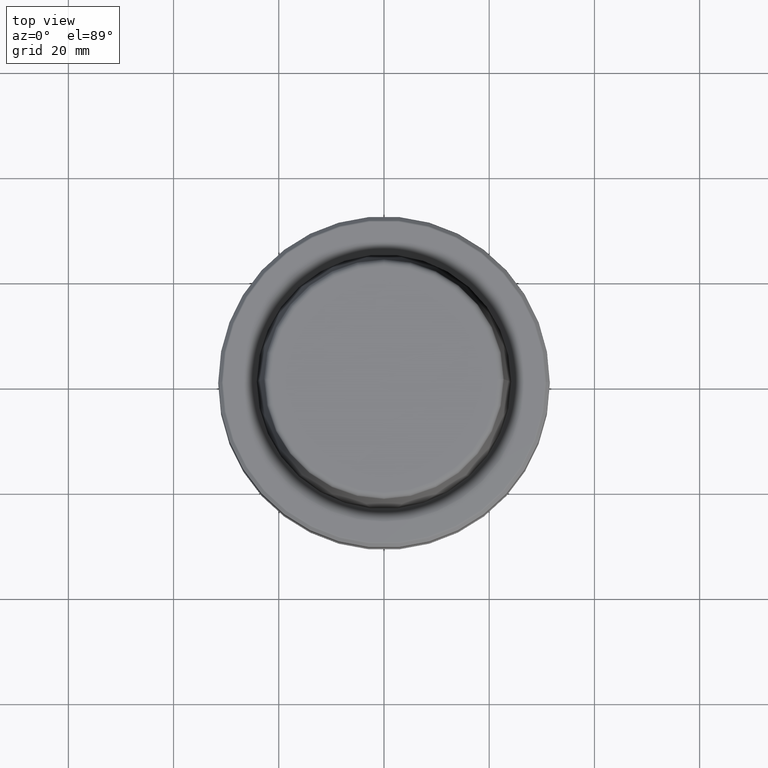
[diagram: clean part render]
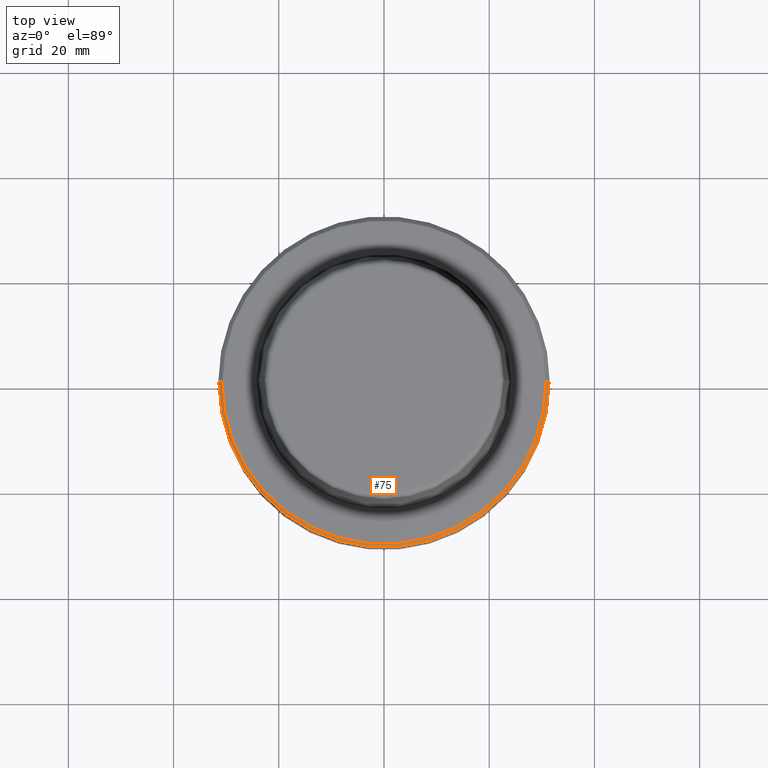
[diagram: same view with one face highlighted and labeled with its STEP entity id]
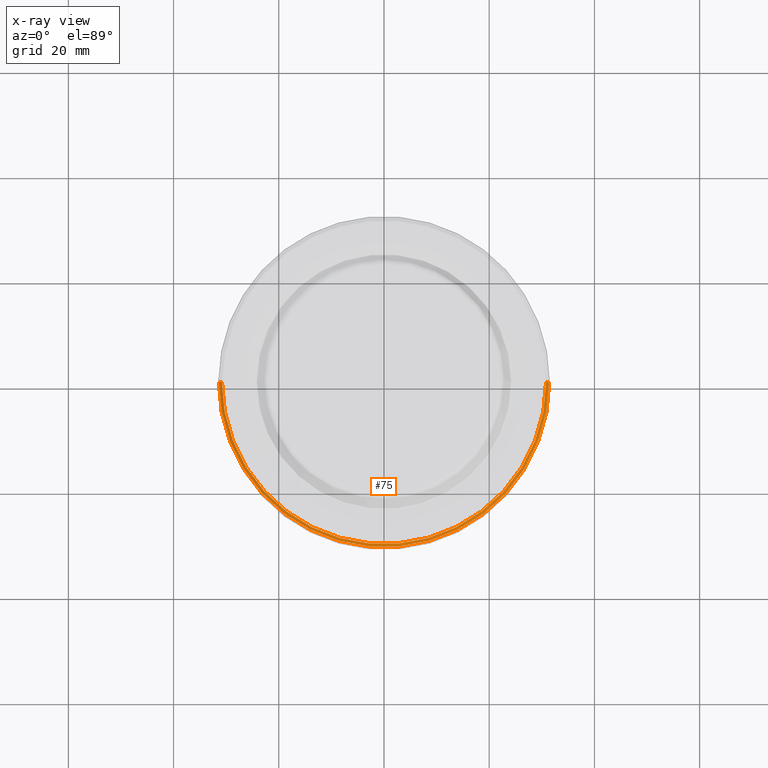
[diagram: x-ray of the same camera — body ghosted, the highlighted face saturated]
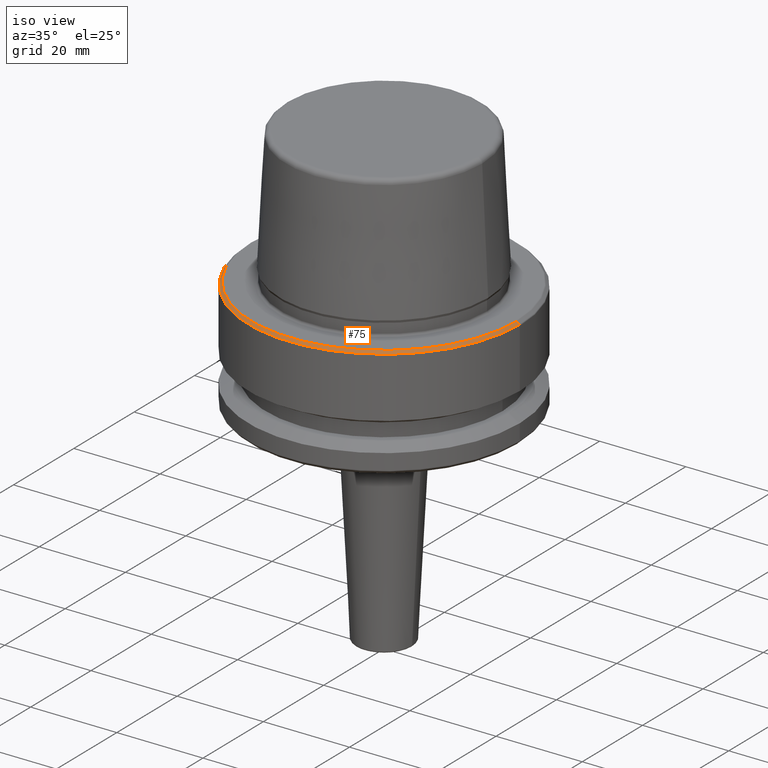
[diagram: same view with one face highlighted and labeled with its STEP entity id]
A machine part, top view. The second image highlights one B-rep face of the part: STEP entity #75.
The next image is the same camera in x-ray: the body ghosted, the highlighted face saturated — about 0% of this face is hidden behind the body in this view.
A second angle (iso view) of the same face is appended — the face is thin or edge-on in the first view.
In plain terms, the highlighted conical surface has half-angle 45 deg.
Its self-contained STEP definition (entity closure, byte-faithful):
#4 = VERTEX_POINT ( 'NONE', #375 ) ;
#41 = ORIENTED_EDGE ( 'NONE', *, *, #95, .T. ) ;
#49 = EDGE_LOOP ( 'NONE', ( #1072, #937, #41, #766 ) ) ;
#53 = AXIS2_PLACEMENT_3D ( 'NONE', #204, #878, #301 ) ;
#75 = ADVANCED_FACE ( 'NONE', ( #308 ), #1247, .T. ) ;
#95 = EDGE_CURVE ( 'NONE', #945, #709, #689, .T. ) ;
#100 = DIRECTION ( 'NONE',  ( -1.000000000000000000, 0.0000000000000000000, 0.0000000000000000000 ) ) ;
#164 = DIRECTION ( 'NONE',  ( -0.0000000000000000000, -0.0000000000000000000, 1.000000000000000000 ) ) ;
#168 = CARTESIAN_POINT ( 'NONE',  ( -30.81715728752537900, 0.0000000000000000000, -0.1171572875253851200 ) ) ;
#204 = CARTESIAN_POINT ( 'NONE',  ( 0.0000000000000000000, 0.0000000000000000000, -0.6828427124746239100 ) ) ;
#214 = EDGE_CURVE ( 'NONE', #4, #1148, #498, .T. ) ;
#269 = EDGE_CURVE ( 'NONE', #945, #4, #693, .T. ) ;
#301 = DIRECTION ( 'NONE',  ( 1.000000000000000000, 0.0000000000000000000, 0.0000000000000000000 ) ) ;
#308 = FACE_OUTER_BOUND ( 'NONE', #49, .T. ) ;
#375 = CARTESIAN_POINT ( 'NONE',  ( 30.81715728752537900, 3.808651545348268500E-015, -0.1171572875253851200 ) ) ;
#415 = CIRCLE ( 'NONE', #53, 31.38284271247461600 ) ;
#419 = CARTESIAN_POINT ( 'NONE',  ( 31.38284271247461600, 0.0000000000000000000, -0.6828427124746239100 ) ) ;
#435 = CARTESIAN_POINT ( 'NONE',  ( 31.38284271247461600, 3.843289787597687600E-015, -0.6828427124746239100 ) ) ;
#498 = LINE ( 'NONE', #435, #732 ) ;
#627 = CARTESIAN_POINT ( 'NONE',  ( 0.0000000000000000000, 0.0000000000000000000, -0.6828427124746239100 ) ) ;
#651 = AXIS2_PLACEMENT_3D ( 'NONE', #627, #1114, #100 ) ;
#689 = LINE ( 'NONE', #1229, #1220 ) ;
#693 = CIRCLE ( 'NONE', #991, 30.81715728752537900 ) ;
#709 = VERTEX_POINT ( 'NONE', #1099 ) ;
#732 = VECTOR ( 'NONE', #1019, 1000.000000000000000 ) ;
#737 = CARTESIAN_POINT ( 'NONE',  ( 0.0000000000000000000, 0.0000000000000000000, -0.1171572875253851200 ) ) ;
#766 = ORIENTED_EDGE ( 'NONE', *, *, #905, .T. ) ;
#837 = DIRECTION ( 'NONE',  ( 1.000000000000000000, 0.0000000000000000000, 0.0000000000000000000 ) ) ;
#878 = DIRECTION ( 'NONE',  ( -0.0000000000000000000, -0.0000000000000000000, 1.000000000000000000 ) ) ;
#905 = EDGE_CURVE ( 'NONE', #709, #1148, #415, .T. ) ;
#937 = ORIENTED_EDGE ( 'NONE', *, *, #269, .F. ) ;
#945 = VERTEX_POINT ( 'NONE', #168 ) ;
#991 = AXIS2_PLACEMENT_3D ( 'NONE', #737, #164, #837 ) ;
#1019 = DIRECTION ( 'NONE',  ( 0.7071067811865453500, 8.659560562354907000E-017, -0.7071067811865496800 ) ) ;
#1072 = ORIENTED_EDGE ( 'NONE', *, *, #214, .F. ) ;
#1099 = CARTESIAN_POINT ( 'NONE',  ( -31.38284271247461600, 3.850463602455925200E-015, -0.6828427124746239100 ) ) ;
#1114 = DIRECTION ( 'NONE',  ( 0.0000000000000000000, 0.0000000000000000000, -1.000000000000000000 ) ) ;
#1131 = DIRECTION ( 'NONE',  ( -0.7071067811865453500, 0.0000000000000000000, -0.7071067811865496800 ) ) ;
#1148 = VERTEX_POINT ( 'NONE', #419 ) ;
#1220 = VECTOR ( 'NONE', #1131, 1000.000000000000000 ) ;
#1229 = CARTESIAN_POINT ( 'NONE',  ( -31.38284271247461600, 0.0000000000000000000, -0.6828427124746239100 ) ) ;
#1247 = CONICAL_SURFACE ( 'NONE', #651, 31.38284271247461600, 0.7853981633974452800 ) ;